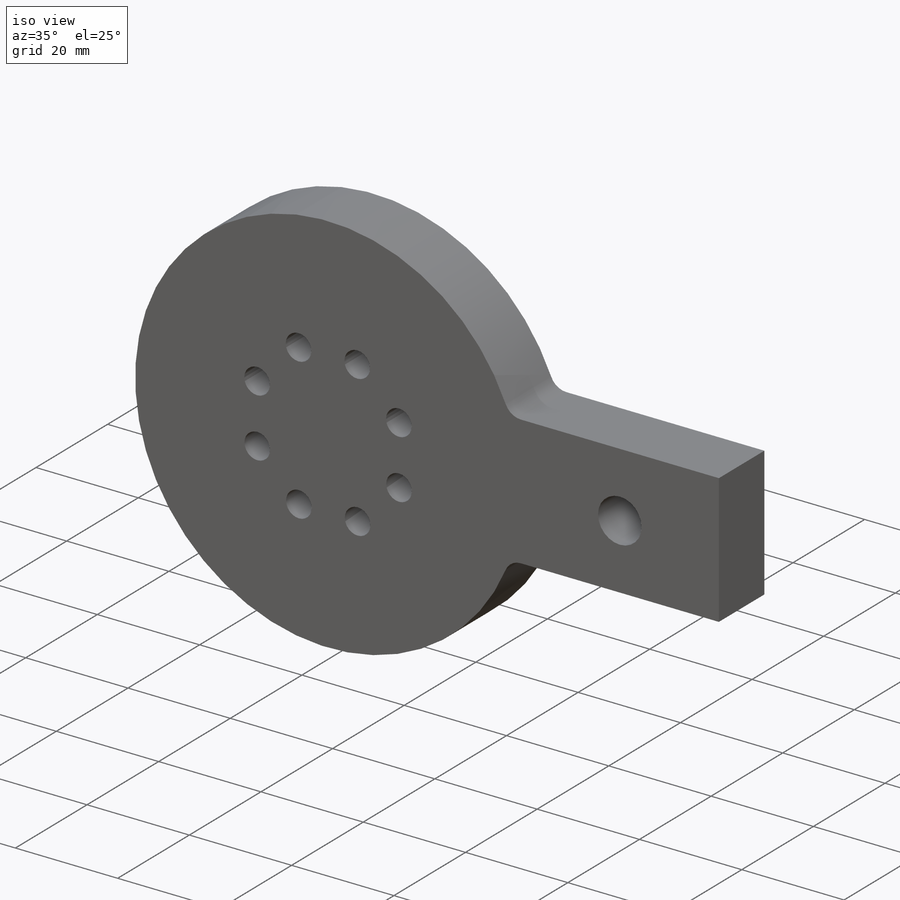
[diagram: iso view]
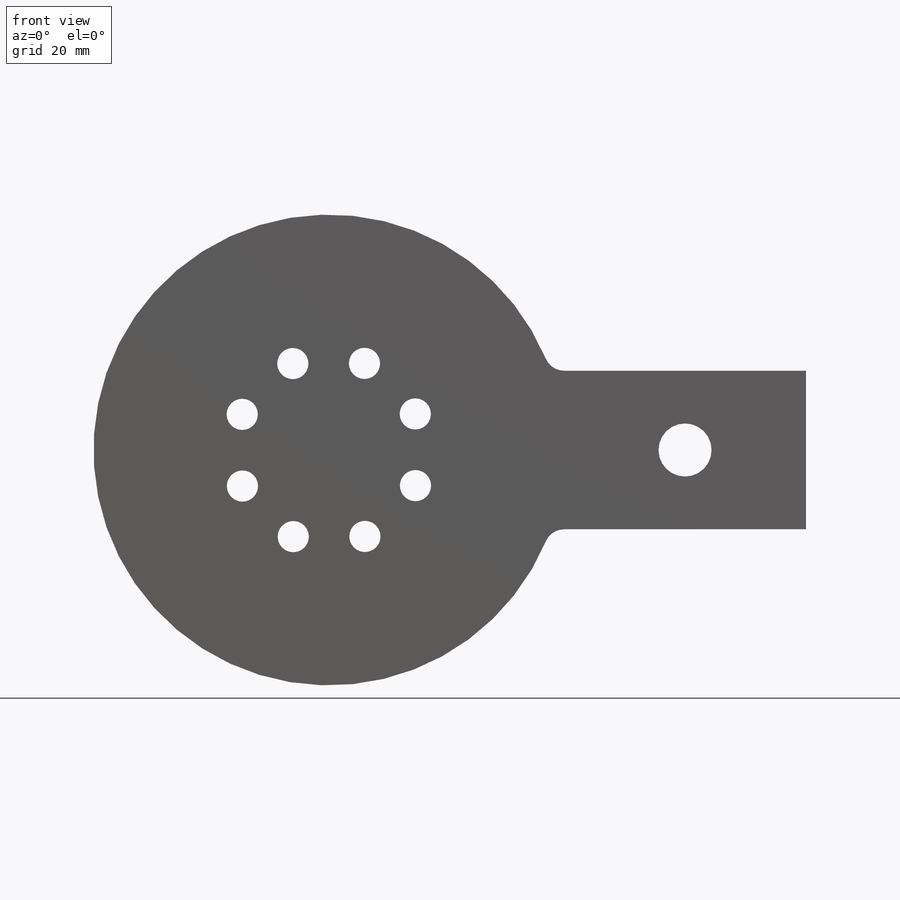
[diagram: front view]
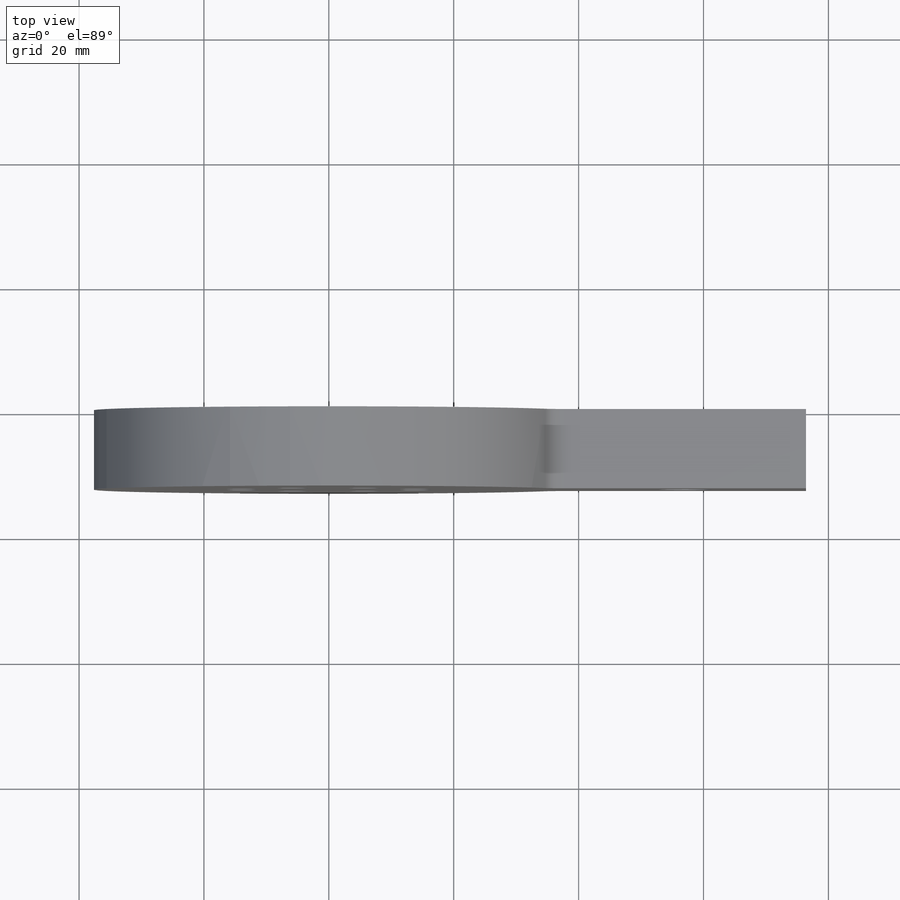
[diagram: top view]
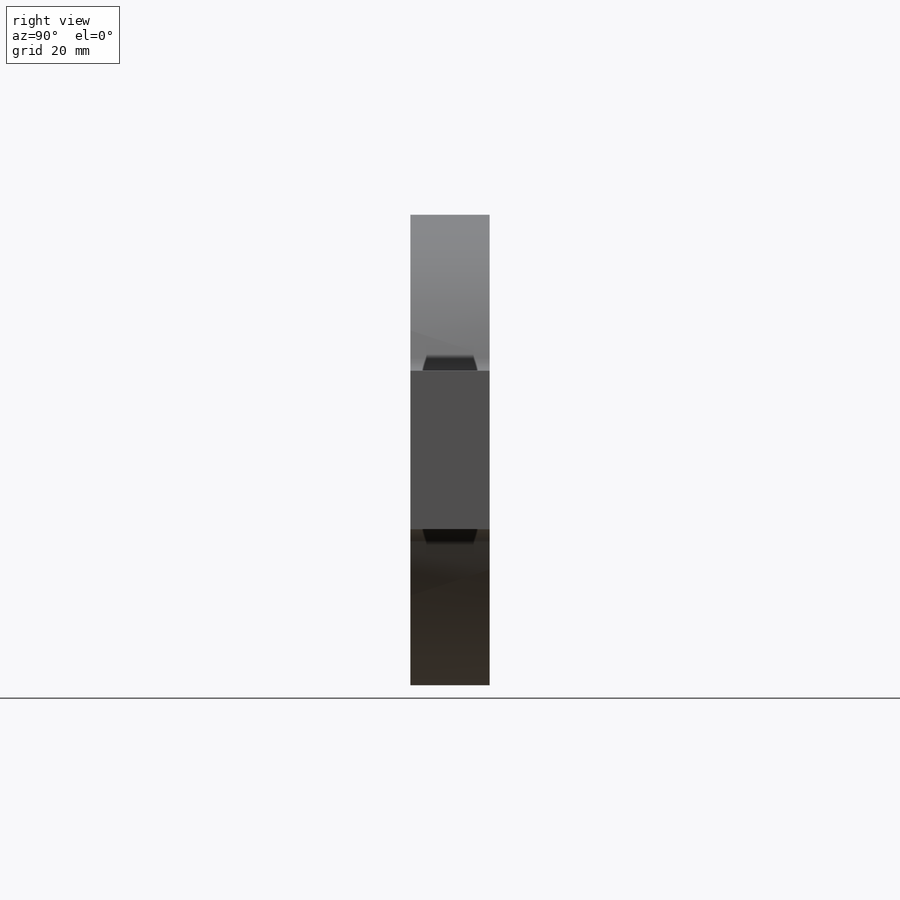
[diagram: right view]
SOLIDWORKS PART (.sldprt)
format: sldprt  version: not decoded by parser v0  size: 195,584 bytes
history: native  units: mm
features: sketch x4, material x1, extrude x1, fillet x1, hole x1 (+12 scaffold rows collapsed)
feature tree (20):
  scaffold x12  (default folders/planes/origin — collapsed)
  material  "Material <not specified>"
  sketch  "Sketch1"  dims[D1=12.7mm D2=~77.577283mm]
  extrude  "Boss-Extrude1"  Depth=12.7mm
  fillet  "Fillet1"  Radius=3.175mm
  sketch  "Sketch2"  dims[D1=0.0mm]
  hole  "Tap Drill for M10x1.5 Tap1"  Diameter=8.5mm Depth=20mm
  sketch  "Sketch4"
  sketch  "Sketch3"  dims[hole-wizard template sketch: 50 standard entries collapsed; hole parameters above]
decode coverage: 6 of 7 modeling features carry decoded parameters
note: ~ marks probable driven/reference dimensions
note: suppression state not decoded; provenance and decode notes live in map.json
